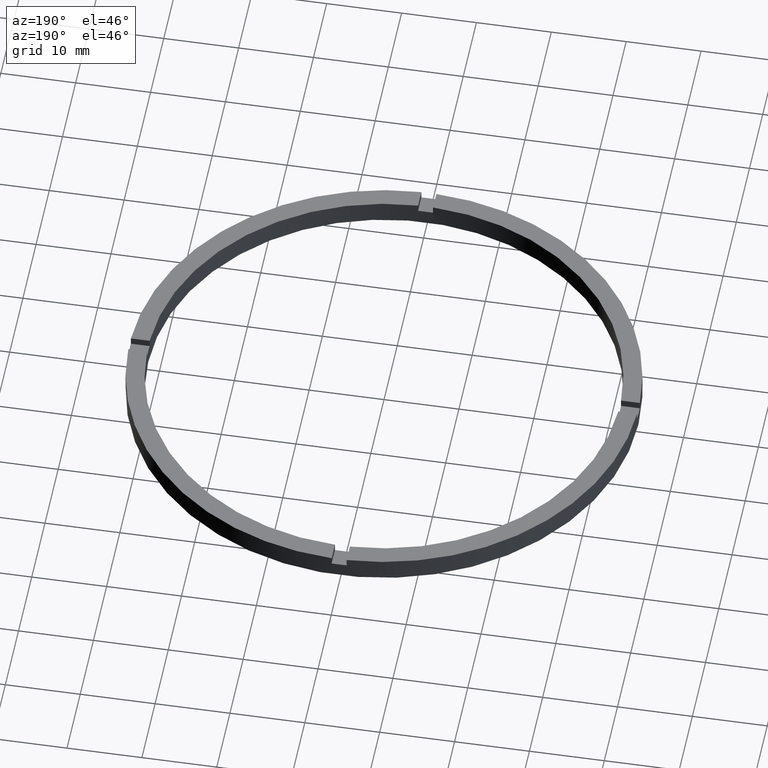
[diagram: clean part render]
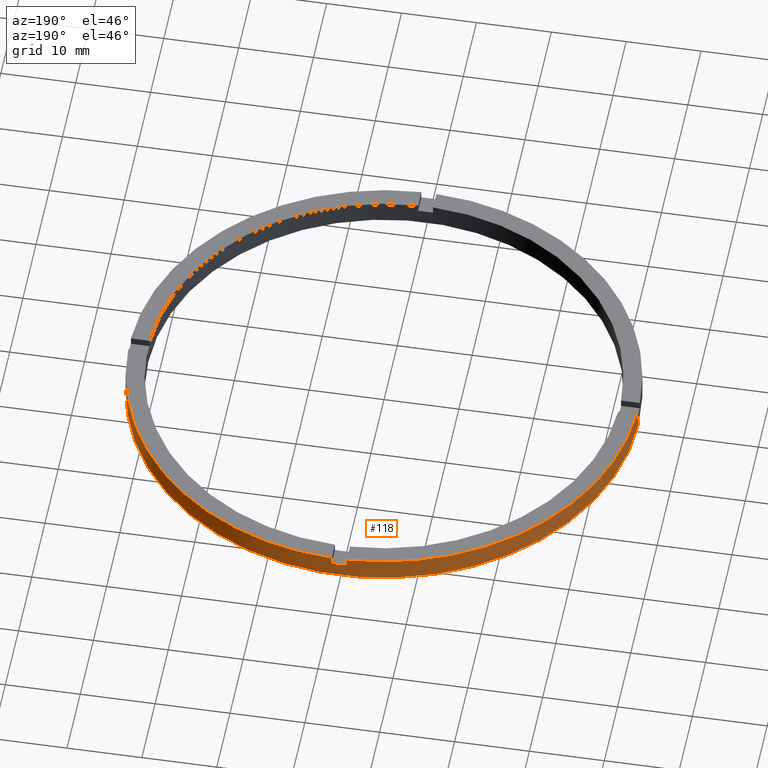
[diagram: same view with one face highlighted and labeled with its STEP entity id]
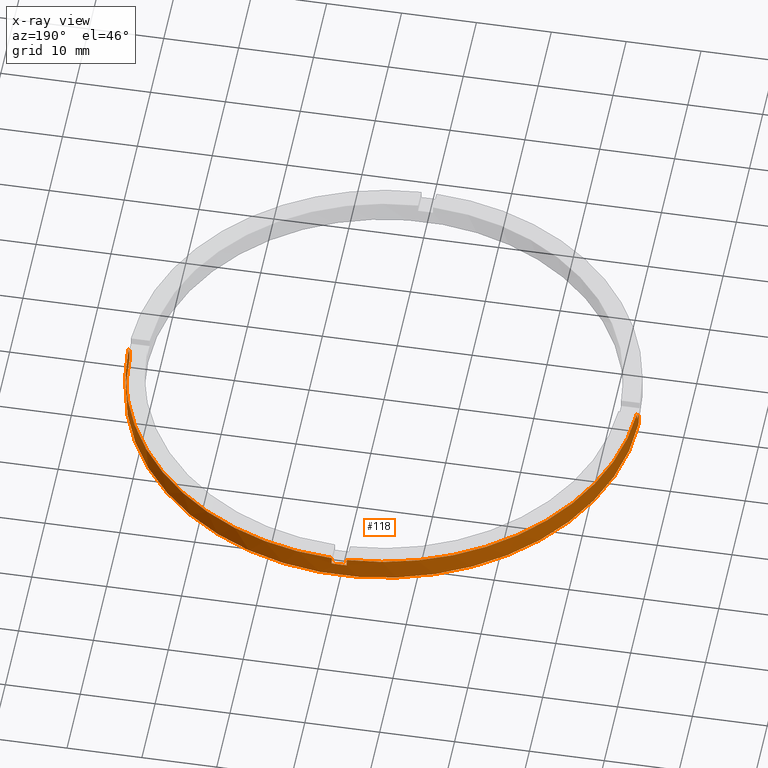
[diagram: x-ray of the same camera — body ghosted, the highlighted face saturated]
A machine part, auxiliary view. The second image highlights one B-rep face of the part: STEP entity #118.
The next image is the same camera in x-ray: the body ghosted, the highlighted face saturated — about 0% of this face is hidden behind the body in this view.
In plain terms, the highlighted cylindrical surface (partial cylindrical patch) has radius 34 mm, axis along (-0, -0, -1).
Its self-contained STEP definition (entity closure, byte-faithful):
#3 = CARTESIAN_POINT ( 'NONE',  ( 33.98529093593285921, 0.9999999999998419042, 3.000000000000000000 ) ) ;
#22 = ORIENTED_EDGE ( 'NONE', *, *, #574, .F. ) ;
#26 = ORIENTED_EDGE ( 'NONE', *, *, #261, .T. ) ;
#29 = CARTESIAN_POINT ( 'NONE',  ( 0.000000000000000000, 0.000000000000000000, 3.000000000000000000 ) ) ;
#46 = CIRCLE ( 'NONE', #477, 34.00000000000000000 ) ;
#62 = VECTOR ( 'NONE', #506, 1000.000000000000000 ) ;
#68 = LINE ( 'NONE', #390, #581 ) ;
#84 = AXIS2_PLACEMENT_3D ( 'NONE', #399, #401, #560 ) ;
#89 = ORIENTED_EDGE ( 'NONE', *, *, #160, .F. ) ;
#101 = VERTEX_POINT ( 'NONE', #213 ) ;
#118 = ADVANCED_FACE ( 'NONE', ( #637 ), #209, .T. ) ;
#120 = VERTEX_POINT ( 'NONE', #259 ) ;
#122 = CARTESIAN_POINT ( 'NONE',  ( 0.000000000000000000, 0.000000000000000000, 2.000000000000000000 ) ) ;
#127 = AXIS2_PLACEMENT_3D ( 'NONE', #122, #210, #588 ) ;
#141 = EDGE_CURVE ( 'NONE', #596, #120, #738, .T. ) ;
#144 = ORIENTED_EDGE ( 'NONE', *, *, #767, .T. ) ;
#150 = ORIENTED_EDGE ( 'NONE', *, *, #491, .T. ) ;
#160 = EDGE_CURVE ( 'NONE', #415, #382, #478, .T. ) ;
#192 = EDGE_CURVE ( 'NONE', #101, #382, #756, .T. ) ;
#202 = EDGE_CURVE ( 'NONE', #433, #276, #233, .T. ) ;
#209 = CYLINDRICAL_SURFACE ( 'NONE', #384, 34.00000000000000000 ) ;
#210 = DIRECTION ( 'NONE',  ( 0.000000000000000000, -0.000000000000000000, 1.000000000000000000 ) ) ;
#213 = CARTESIAN_POINT ( 'NONE',  ( -1.000000000000024869, 33.98529093593285211, 3.000000000000000000 ) ) ;
#215 = CARTESIAN_POINT ( 'NONE',  ( -33.98529093593285921, 0.9999999999999735767, 2.000000000000000000 ) ) ;
#218 = LINE ( 'NONE', #387, #220 ) ;
#220 = VECTOR ( 'NONE', #776, 1000.000000000000000 ) ;
#224 = VECTOR ( 'NONE', #666, 1000.000000000000000 ) ;
#233 = LINE ( 'NONE', #267, #224 ) ;
#235 = DIRECTION ( 'NONE',  ( -0.000000000000000000, -0.000000000000000000, -1.000000000000000000 ) ) ;
#259 = CARTESIAN_POINT ( 'NONE',  ( -34.00000000000000000, 0.000000000000000000, 0.000000000000000000 ) ) ;
#261 = EDGE_CURVE ( 'NONE', #415, #262, #218, .T. ) ;
#262 = VERTEX_POINT ( 'NONE', #488 ) ;
#264 = DIRECTION ( 'NONE',  ( -1.000000000000000000, 0.000000000000000000, 0.000000000000000000 ) ) ;
#267 = CARTESIAN_POINT ( 'NONE',  ( -33.98529093593285921, 0.9999999999999735767, 3.000000000000000000 ) ) ;
#268 = CARTESIAN_POINT ( 'NONE',  ( 34.00000000000000000, 4.163799117101000559E-15, 0.000000000000000000 ) ) ;
#276 = VERTEX_POINT ( 'NONE', #706 ) ;
#281 = ORIENTED_EDGE ( 'NONE', *, *, #729, .F. ) ;
#307 = CIRCLE ( 'NONE', #84, 34.00000000000000000 ) ;
#316 = CIRCLE ( 'NONE', #465, 34.00000000000000000 ) ;
#333 = LINE ( 'NONE', #746, #62 ) ;
#364 = ORIENTED_EDGE ( 'NONE', *, *, #585, .F. ) ;
#367 = CARTESIAN_POINT ( 'NONE',  ( -34.00000000000000000, 0.000000000000000000, 3.000000000000000000 ) ) ;
#380 = EDGE_LOOP ( 'NONE', ( #364, #150, #144, #631, #22, #398, #281, #537, #89, #26, #665, #670 ) ) ;
#382 = VERTEX_POINT ( 'NONE', #457 ) ;
#384 = AXIS2_PLACEMENT_3D ( 'NONE', #29, #235, #264 ) ;
#385 = VERTEX_POINT ( 'NONE', #512 ) ;
#387 = CARTESIAN_POINT ( 'NONE',  ( 0.9999999999999751310, 33.98529093593285921, 3.000000000000000000 ) ) ;
#389 = DIRECTION ( 'NONE',  ( 0.000000000000000000, 0.000000000000000000, 1.000000000000000000 ) ) ;
#390 = CARTESIAN_POINT ( 'NONE',  ( 34.00000000000000000, 4.163799117101000559E-15, 3.000000000000000000 ) ) ;
#398 = ORIENTED_EDGE ( 'NONE', *, *, #202, .T. ) ;
#399 = CARTESIAN_POINT ( 'NONE',  ( 0.000000000000000000, 0.000000000000000000, 3.000000000000000000 ) ) ;
#401 = DIRECTION ( 'NONE',  ( 0.000000000000000000, 0.000000000000000000, 1.000000000000000000 ) ) ;
#415 = VERTEX_POINT ( 'NONE', #462 ) ;
#417 = DIRECTION ( 'NONE',  ( 0.000000000000000000, 0.000000000000000000, 1.000000000000000000 ) ) ;
#418 = DIRECTION ( 'NONE',  ( -0.000000000000000000, -0.000000000000000000, -1.000000000000000000 ) ) ;
#424 = CARTESIAN_POINT ( 'NONE',  ( 0.000000000000000000, 0.000000000000000000, 2.000000000000000000 ) ) ;
#429 = DIRECTION ( 'NONE',  ( -0.000000000000000000, -0.000000000000000000, -1.000000000000000000 ) ) ;
#433 = VERTEX_POINT ( 'NONE', #215 ) ;
#440 = DIRECTION ( 'NONE',  ( 1.000000000000000000, 0.000000000000000000, 0.000000000000000000 ) ) ;
#457 = CARTESIAN_POINT ( 'NONE',  ( -1.000000000000024869, 33.98529093593285211, 2.000000000000000000 ) ) ;
#462 = CARTESIAN_POINT ( 'NONE',  ( 0.9999999999999751310, 33.98529093593285921, 2.000000000000000000 ) ) ;
#465 = AXIS2_PLACEMENT_3D ( 'NONE', #685, #389, #440 ) ;
#471 = DIRECTION ( 'NONE',  ( 0.000000000000000000, 0.000000000000000000, 1.000000000000000000 ) ) ;
#476 = VECTOR ( 'NONE', #429, 1000.000000000000000 ) ;
#477 = AXIS2_PLACEMENT_3D ( 'NONE', #669, #471, #544 ) ;
#478 = CIRCLE ( 'NONE', #127, 34.00000000000000000 ) ;
#488 = CARTESIAN_POINT ( 'NONE',  ( 0.9999999999999751310, 33.98529093593285921, 3.000000000000000000 ) ) ;
#491 = EDGE_CURVE ( 'NONE', #385, #683, #68, .T. ) ;
#498 = CARTESIAN_POINT ( 'NONE',  ( 33.98529093593285921, 0.9999999999998419042, 2.000000000000000000 ) ) ;
#506 = DIRECTION ( 'NONE',  ( -0.000000000000000000, -0.000000000000000000, -1.000000000000000000 ) ) ;
#512 = CARTESIAN_POINT ( 'NONE',  ( 34.00000000000000000, 4.163799117101000559E-15, 2.000000000000000000 ) ) ;
#525 = DIRECTION ( 'NONE',  ( 1.000000000000000000, 0.000000000000000000, 0.000000000000000000 ) ) ;
#534 = DIRECTION ( 'NONE',  ( -0.000000000000000000, -0.000000000000000000, -1.000000000000000000 ) ) ;
#537 = ORIENTED_EDGE ( 'NONE', *, *, #192, .T. ) ;
#544 = DIRECTION ( 'NONE',  ( 1.000000000000000000, 0.000000000000000000, 0.000000000000000000 ) ) ;
#552 = EDGE_CURVE ( 'NONE', #629, #262, #307, .T. ) ;
#560 = DIRECTION ( 'NONE',  ( 1.000000000000000000, 0.000000000000000000, 0.000000000000000000 ) ) ;
#571 = EDGE_CURVE ( 'NONE', #629, #639, #333, .T. ) ;
#574 = EDGE_CURVE ( 'NONE', #433, #596, #575, .T. ) ;
#575 = CIRCLE ( 'NONE', #759, 34.00000000000000000 ) ;
#579 = CIRCLE ( 'NONE', #612, 34.00000000000000000 ) ;
#581 = VECTOR ( 'NONE', #534, 1000.000000000000000 ) ;
#585 = EDGE_CURVE ( 'NONE', #385, #639, #46, .T. ) ;
#588 = DIRECTION ( 'NONE',  ( 1.000000000000000000, 0.000000000000000000, 0.000000000000000000 ) ) ;
#596 = VERTEX_POINT ( 'NONE', #617 ) ;
#605 = CARTESIAN_POINT ( 'NONE',  ( 0.000000000000000000, 0.000000000000000000, 3.000000000000000000 ) ) ;
#612 = AXIS2_PLACEMENT_3D ( 'NONE', #605, #675, #722 ) ;
#617 = CARTESIAN_POINT ( 'NONE',  ( -34.00000000000000000, 0.000000000000000000, 2.000000000000000000 ) ) ;
#629 = VERTEX_POINT ( 'NONE', #3 ) ;
#631 = ORIENTED_EDGE ( 'NONE', *, *, #141, .F. ) ;
#637 = FACE_OUTER_BOUND ( 'NONE', #380, .T. ) ;
#639 = VERTEX_POINT ( 'NONE', #498 ) ;
#665 = ORIENTED_EDGE ( 'NONE', *, *, #552, .F. ) ;
#666 = DIRECTION ( 'NONE',  ( 0.000000000000000000, 0.000000000000000000, 1.000000000000000000 ) ) ;
#669 = CARTESIAN_POINT ( 'NONE',  ( 0.000000000000000000, 0.000000000000000000, 2.000000000000000000 ) ) ;
#670 = ORIENTED_EDGE ( 'NONE', *, *, #571, .T. ) ;
#675 = DIRECTION ( 'NONE',  ( 0.000000000000000000, 0.000000000000000000, 1.000000000000000000 ) ) ;
#683 = VERTEX_POINT ( 'NONE', #268 ) ;
#685 = CARTESIAN_POINT ( 'NONE',  ( 0.000000000000000000, 0.000000000000000000, 0.000000000000000000 ) ) ;
#706 = CARTESIAN_POINT ( 'NONE',  ( -33.98529093593285921, 0.9999999999999735767, 3.000000000000000000 ) ) ;
#721 = CARTESIAN_POINT ( 'NONE',  ( -1.000000000000024869, 33.98529093593285211, 3.000000000000000000 ) ) ;
#722 = DIRECTION ( 'NONE',  ( 1.000000000000000000, 0.000000000000000000, 0.000000000000000000 ) ) ;
#729 = EDGE_CURVE ( 'NONE', #101, #276, #579, .T. ) ;
#738 = LINE ( 'NONE', #367, #476 ) ;
#739 = VECTOR ( 'NONE', #418, 1000.000000000000000 ) ;
#746 = CARTESIAN_POINT ( 'NONE',  ( 33.98529093593285921, 0.9999999999998419042, 3.000000000000000000 ) ) ;
#756 = LINE ( 'NONE', #721, #739 ) ;
#759 = AXIS2_PLACEMENT_3D ( 'NONE', #424, #417, #525 ) ;
#767 = EDGE_CURVE ( 'NONE', #683, #120, #316, .T. ) ;
#776 = DIRECTION ( 'NONE',  ( 0.000000000000000000, 0.000000000000000000, 1.000000000000000000 ) ) ;